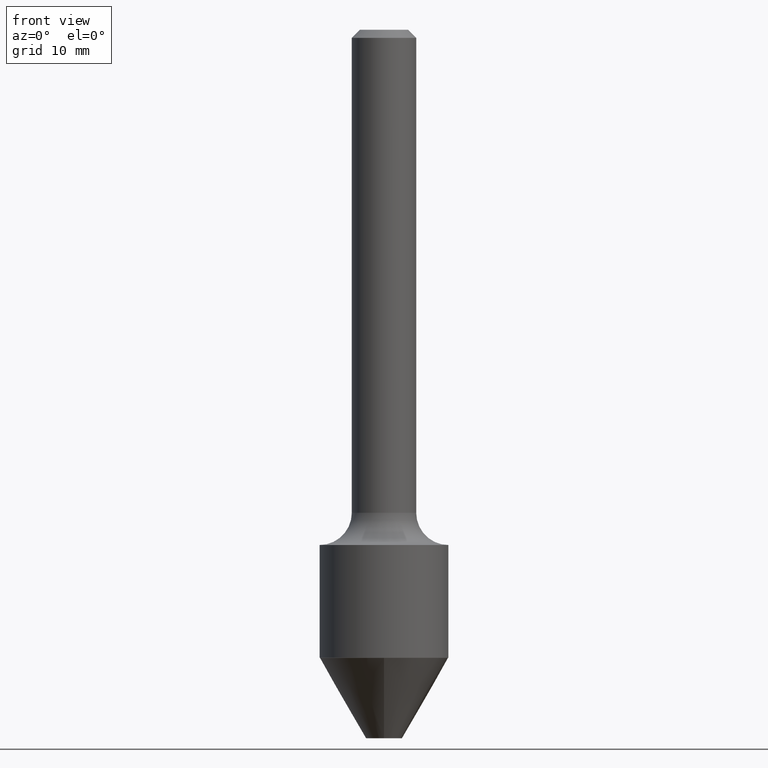
[diagram: clean part render]
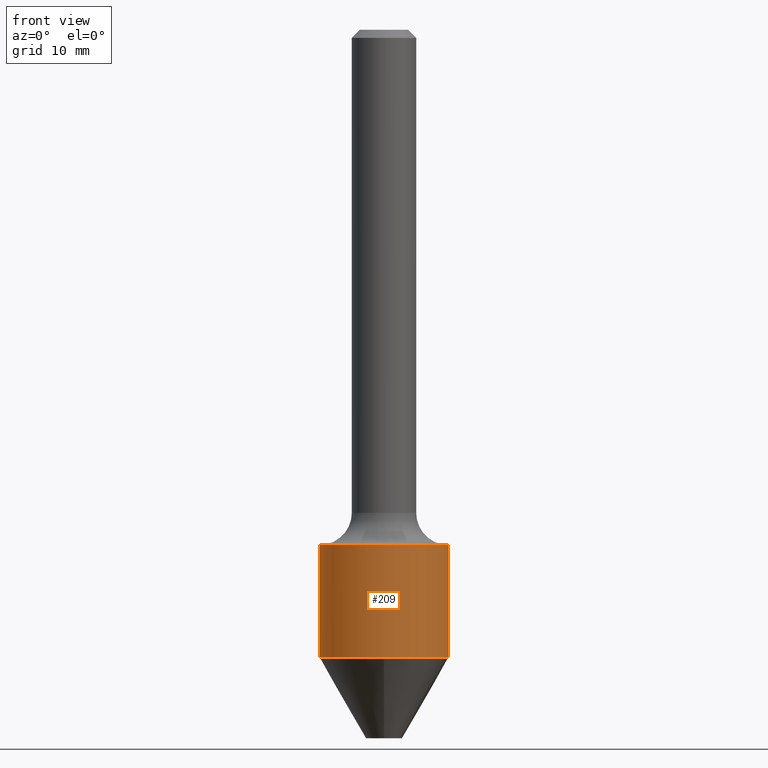
[diagram: same view with one face highlighted and labeled with its STEP entity id]
A machine part, front view. The second image highlights one B-rep face of the part: STEP entity #209.
In plain terms, the highlighted cylindrical surface (partial cylindrical patch) has radius 6.35 mm, axis along (-0, 0, 1).
Its self-contained STEP definition (entity closure, byte-faithful):
#5 = CIRCLE ( 'NONE', #360, 0.2499999999999999722 ) ;
#7 = CARTESIAN_POINT ( 'NONE',  ( 0.2500000000000000000, -8.728703347107857054E-15, -1.999999999999999778 ) ) ;
#14 = DIRECTION ( 'NONE',  ( 1.000000000000000000, -6.982962677686266711E-15, 4.876176775795935793E-29 ) ) ;
#16 = VECTOR ( 'NONE', #380, 39.37007874015748143 ) ;
#28 = CARTESIAN_POINT ( 'NONE',  ( -0.2500000000000000000, -5.206605838286039123E-15, -1.999999999999999778 ) ) ;
#62 = DIRECTION ( 'NONE',  ( -2.445468806185136597E-29, 3.491481338843145583E-15, 1.000000000000000000 ) ) ;
#63 = EDGE_CURVE ( 'NONE', #233, #411, #303, .T. ) ;
#74 = EDGE_LOOP ( 'NONE', ( #313, #304, #511, #462 ) ) ;
#77 = CARTESIAN_POINT ( 'NONE',  ( -0.2499999999999999722, -5.969897523152902591E-15, -2.437230854637630006 ) ) ;
#87 = CARTESIAN_POINT ( 'NONE',  ( 4.890937612370272633E-29, -6.982962677686290376E-15, -1.999999999999999778 ) ) ;
#117 = EDGE_CURVE ( 'NONE', #351, #233, #504, .T. ) ;
#139 = DIRECTION ( 'NONE',  ( 1.000000000000000000, -6.982962677686267499E-15, 0.000000000000000000 ) ) ;
#141 = CARTESIAN_POINT ( 'NONE',  ( -0.2500000000000000000, 1.776356839400250465E-15, -1.229733772563726445E-29 ) ) ;
#172 = DIRECTION ( 'NONE',  ( -2.445468806185136877E-29, 3.491481338843145188E-15, 1.000000000000000000 ) ) ;
#175 = EDGE_CURVE ( 'NONE', #351, #387, #5, .T. ) ;
#209 = ADVANCED_FACE ( 'NONE', ( #219 ), #296, .T. ) ;
#219 = FACE_OUTER_BOUND ( 'NONE', #74, .T. ) ;
#233 = VERTEX_POINT ( 'NONE', #28 ) ;
#296 = CYLINDRICAL_SURFACE ( 'NONE', #335, 0.2500000000000000000 ) ;
#303 = CIRCLE ( 'NONE', #508, 0.2500000000000000000 ) ;
#304 = ORIENTED_EDGE ( 'NONE', *, *, #175, .T. ) ;
#309 = VECTOR ( 'NONE', #172, 39.37007874015748143 ) ;
#313 = ORIENTED_EDGE ( 'NONE', *, *, #117, .F. ) ;
#335 = AXIS2_PLACEMENT_3D ( 'NONE', #346, #382, #14 ) ;
#346 = CARTESIAN_POINT ( 'NONE',  ( 0.000000000000000000, 0.000000000000000000, 0.000000000000000000 ) ) ;
#351 = VERTEX_POINT ( 'NONE', #77 ) ;
#360 = AXIS2_PLACEMENT_3D ( 'NONE', #499, #62, #139 ) ;
#361 = DIRECTION ( 'NONE',  ( -2.445468806185136597E-29, 3.491481338843145583E-15, 1.000000000000000000 ) ) ;
#365 = CARTESIAN_POINT ( 'NONE',  ( 0.2499999999999999722, -1.025528671684158399E-14, -2.437230854637630006 ) ) ;
#370 = CARTESIAN_POINT ( 'NONE',  ( 0.2500000000000000000, -1.745740669421566678E-15, 1.219044193948983948E-29 ) ) ;
#380 = DIRECTION ( 'NONE',  ( -2.445468806185136877E-29, 3.491481338843145188E-15, 1.000000000000000000 ) ) ;
#382 = DIRECTION ( 'NONE',  ( -2.445468806185136597E-29, 3.491481338843145583E-15, 1.000000000000000000 ) ) ;
#387 = VERTEX_POINT ( 'NONE', #365 ) ;
#410 = LINE ( 'NONE', #370, #309 ) ;
#411 = VERTEX_POINT ( 'NONE', #7 ) ;
#462 = ORIENTED_EDGE ( 'NONE', *, *, #63, .F. ) ;
#499 = CARTESIAN_POINT ( 'NONE',  ( 5.960172028488266116E-29, -8.509546047420017313E-15, -2.437230854637630006 ) ) ;
#501 = EDGE_CURVE ( 'NONE', #387, #411, #410, .T. ) ;
#504 = LINE ( 'NONE', #141, #16 ) ;
#508 = AXIS2_PLACEMENT_3D ( 'NONE', #87, #361, #518 ) ;
#511 = ORIENTED_EDGE ( 'NONE', *, *, #501, .T. ) ;
#518 = DIRECTION ( 'NONE',  ( 1.000000000000000000, -6.982962677686266711E-15, 0.000000000000000000 ) ) ;